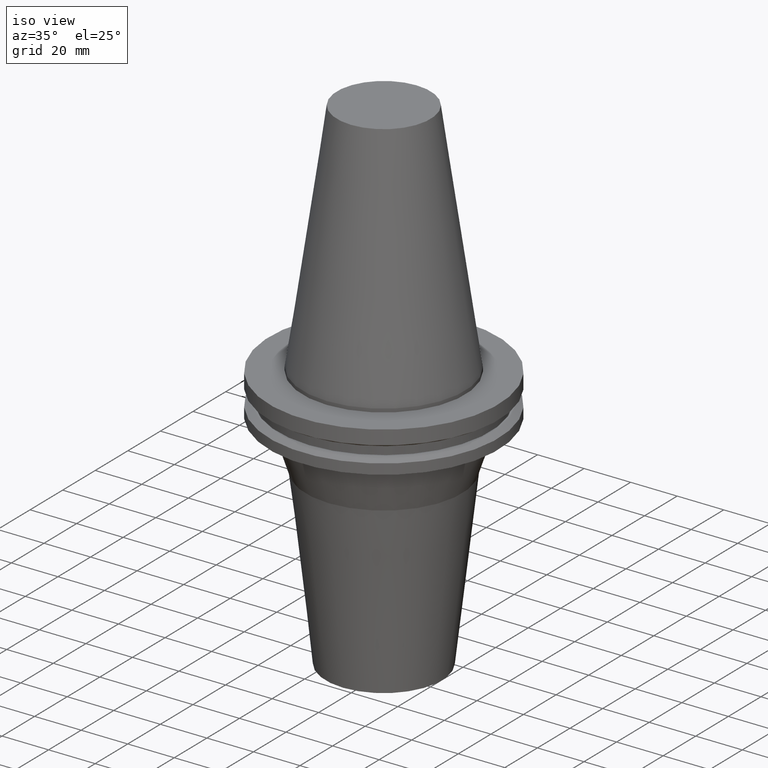
[diagram: clean part render]
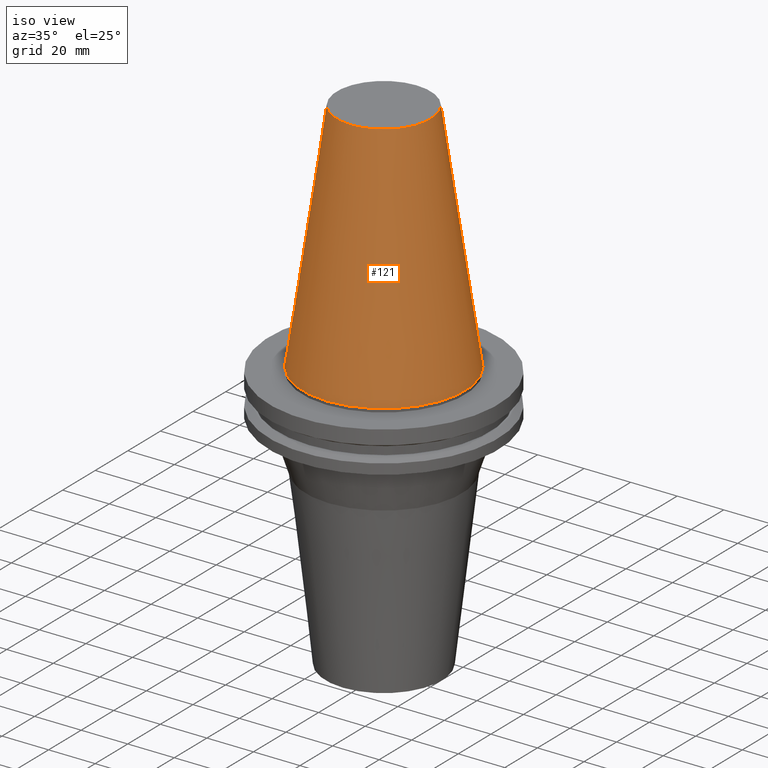
[diagram: tour spotlight — one face highlighted and labeled with its STEP entity id]
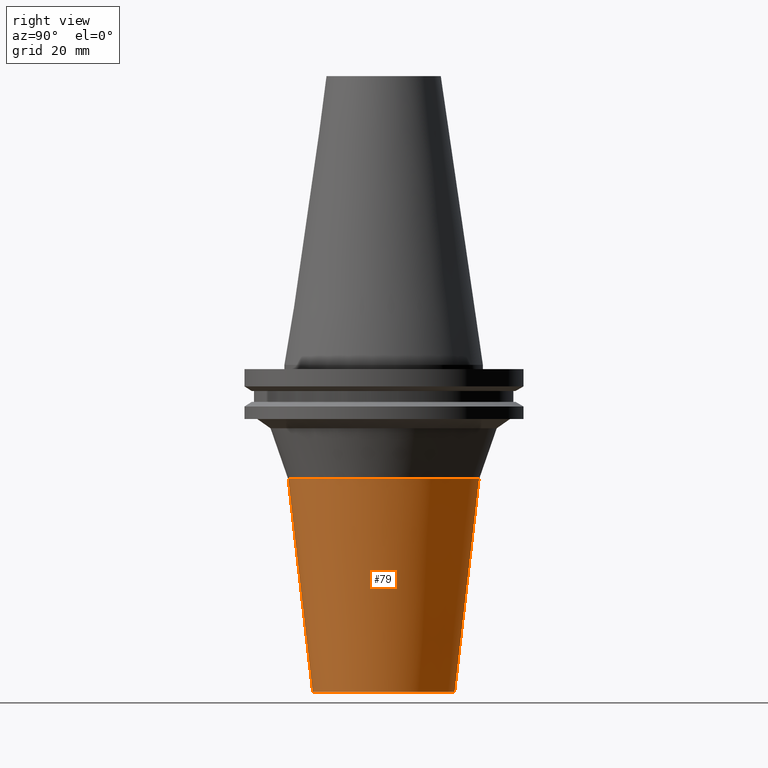
[diagram: tour spotlight — one face highlighted and labeled with its STEP entity id]
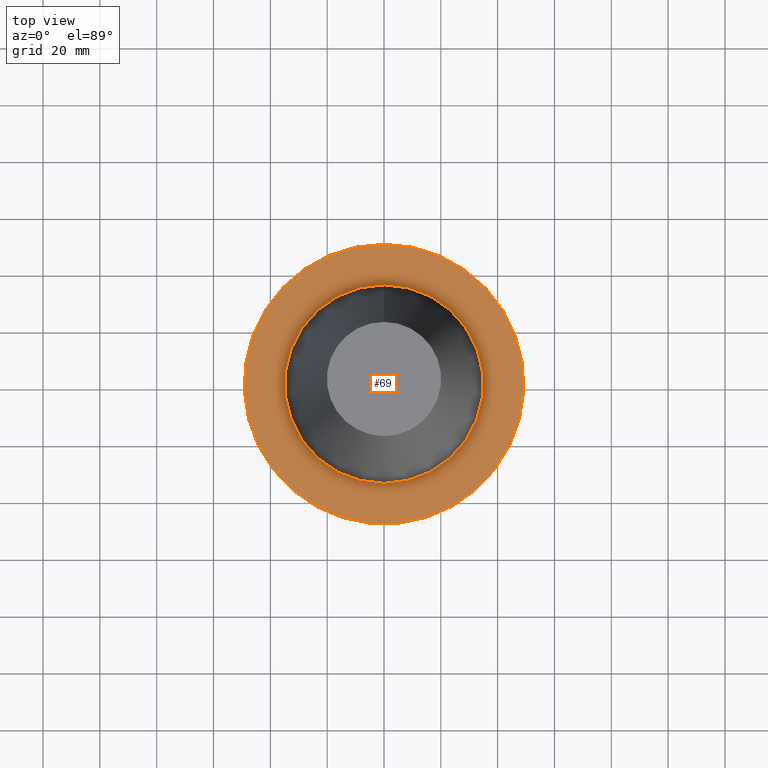
[diagram: tour spotlight — one face highlighted and labeled with its STEP entity id]
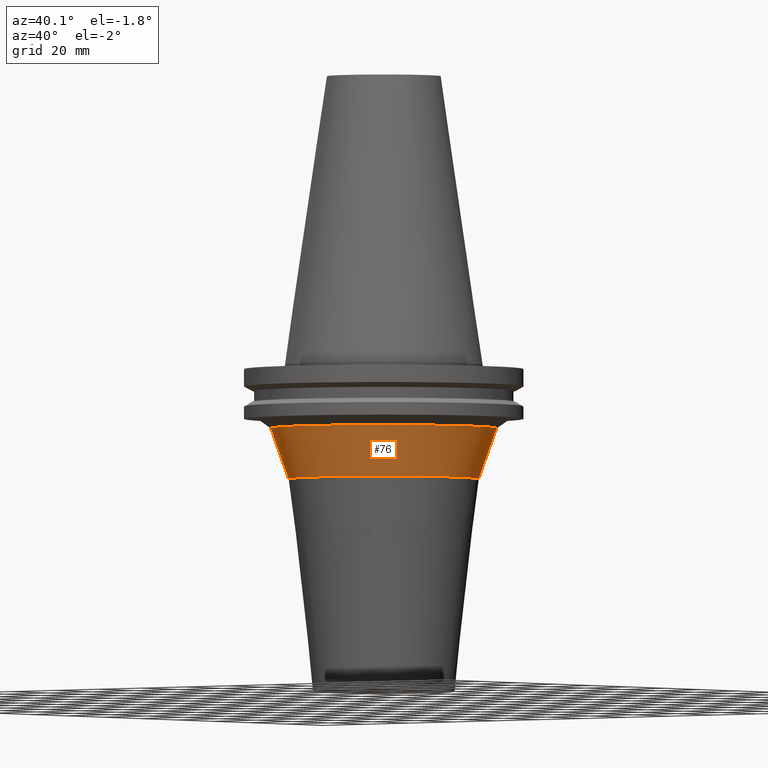
[diagram: tour spotlight — one face highlighted and labeled with its STEP entity id]
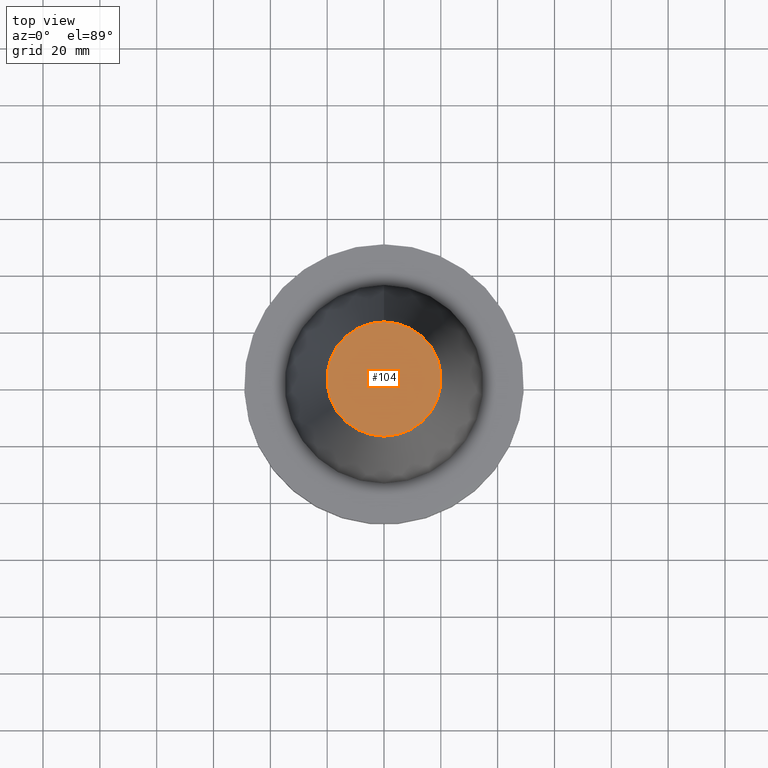
[diagram: tour spotlight — one face highlighted and labeled with its STEP entity id]
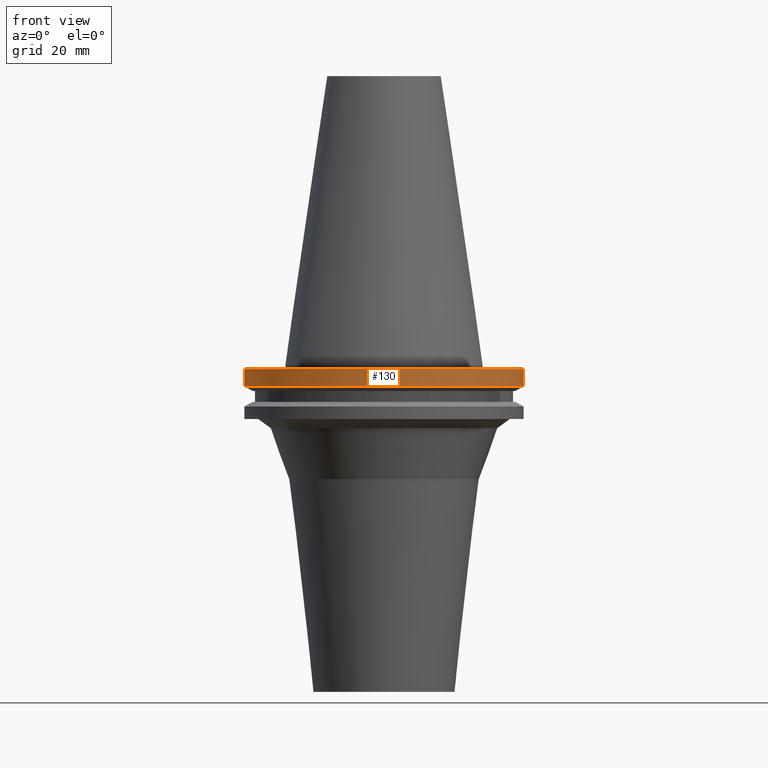
[diagram: tour spotlight — one face highlighted and labeled with its STEP entity id]
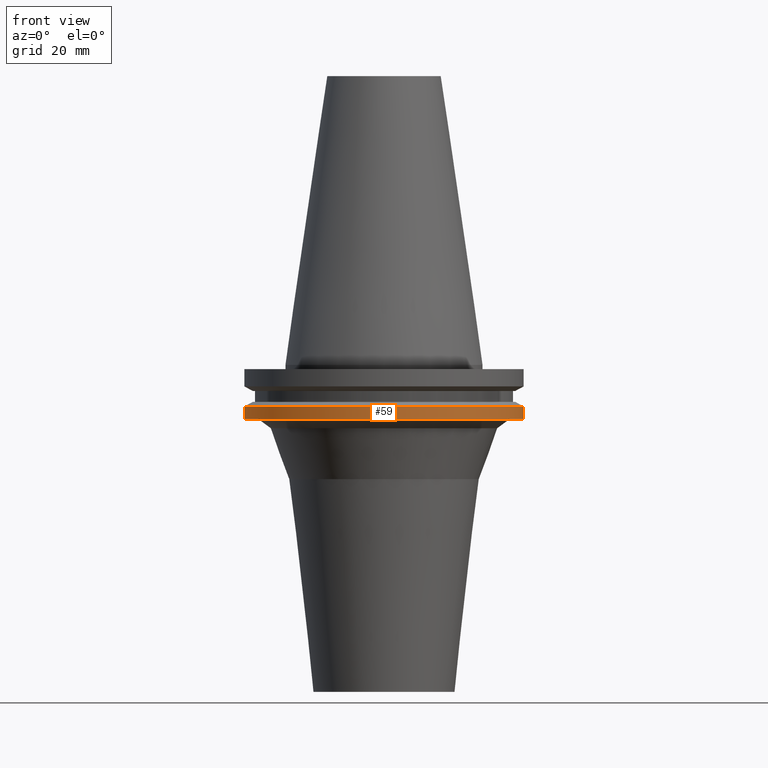
[diagram: tour spotlight — one face highlighted and labeled with its STEP entity id]
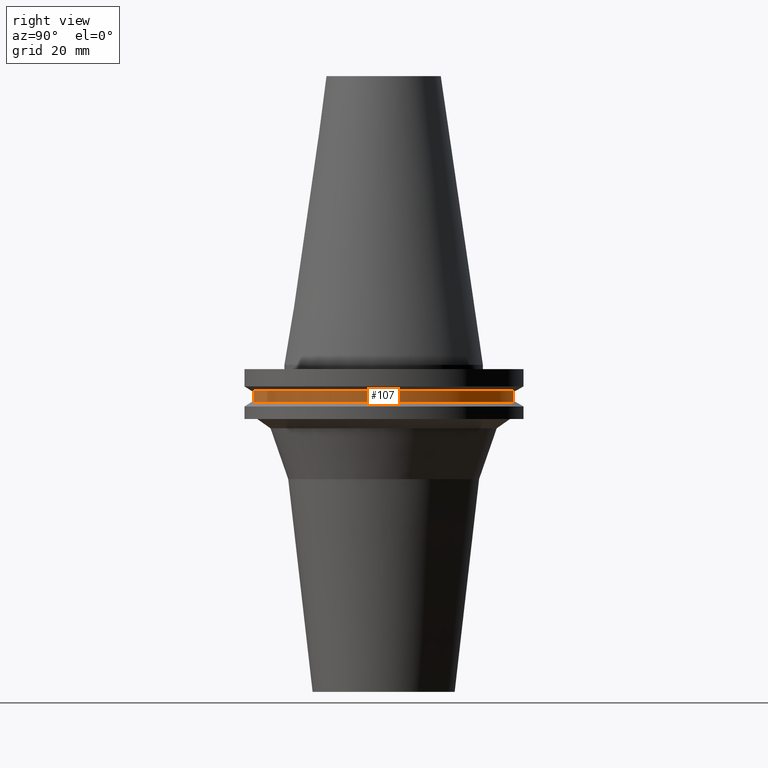
[diagram: tour spotlight — one face highlighted and labeled with its STEP entity id]
A machine part: a face-by-face anatomy tour. The part has 16 B-rep faces; the first image is the clean iso view, then the 8 largest visible faces are spotlighted one at a time (largest first), each with its STEP entity span.

Face 1 — iso view, entity #121. In plain terms, the highlighted conical surface has half-angle 8.297 deg.
Definition (entity closure, byte-faithful):
#121=ADVANCED_FACE('Unnamed[1]',(#253,#254),#255,.T.);
#123=EDGE_CURVE('Unnamed[1]',#257,#257,#258,.T.);
#127=EDGE_CURVE('Unnamed[1]',#263,#263,#264,.T.);
#253=FACE_BOUND('',#410,.T.);
#254=FACE_BOUND('',#411,.T.);
#255=CONICAL_SURFACE('',#412,27.5166666648608,0.144812498273746);
#257=VERTEX_POINT('',#415);
#258=CIRCLE('',#416,20.1083333297217);
#263=VERTEX_POINT('',#423);
#264=CIRCLE('',#424,34.925);
#410=EDGE_LOOP('',(#553));
#411=EDGE_LOOP('',(#554));
#412=AXIS2_PLACEMENT_3D('',#555,#556,#557);
#415=CARTESIAN_POINT('',(-6.22120573966855E-015,20.1083333297217,101.6));
#416=AXIS2_PLACEMENT_3D('',#558,#559,#560);
#423=CARTESIAN_POINT('',(-4.30483861169435E-031,34.925,4.27707894602213E-015));
#424=AXIS2_PLACEMENT_3D('',#564,#565,#566);
#553=ORIENTED_EDGE('',*,*,#127,.F.);
#554=ORIENTED_EDGE('',*,*,#123,.T.);
#555=CARTESIAN_POINT('',(-3.11060286983428E-015,-2.01658754122318E-015,50.8));
#556=DIRECTION('',(6.12323399573677E-017,-1.22619910848867E-016,-1.0));
#557=DIRECTION('',(2.68115133587094E-033,1.0,-1.22619910848867E-016));
#558=CARTESIAN_POINT('',(-6.22120573966855E-015,4.21250392989929E-015,101.6));
#559=DIRECTION('',(6.12323399573677E-017,-1.22619910848867E-016,-1.0));
#560=DIRECTION('',(2.68115133587094E-033,1.0,-1.22619910848867E-016));
#564=CARTESIAN_POINT('',(-8.7016388700601E-031,-8.24567901234564E-015,1.4210854715202E-014));
#565=DIRECTION('',(6.12323399573676E-017,-1.22619910848867E-016,-1.0));
#566=DIRECTION('',(2.68115133587094E-033,1.0,-1.22619910848867E-016));

Face 2 — right view, entity #79. In plain terms, the highlighted conical surface has half-angle 6.541 deg.
Definition (entity closure, byte-faithful):
#71=EDGE_CURVE('Unnamed[1]',#176,#176,#177,.T.);
#79=ADVANCED_FACE('Unnamed[1]',(#188,#189),#190,.T.);
#88=EDGE_CURVE('Unnamed[1]',#201,#201,#202,.T.);
#176=VERTEX_POINT('',#315);
#177=CIRCLE('',#316,24.9999999999999);
#188=FACE_BOUND('',#330,.T.);
#189=FACE_BOUND('',#331,.T.);
#190=CONICAL_SURFACE('',#332,29.2930885876382,0.114170566702656);
#201=VERTEX_POINT('',#346);
#202=CIRCLE('',#347,33.5861771752765);
#315=CARTESIAN_POINT('',(7.04784232909304E-015,24.9999999999999,-115.1));
#316=AXIS2_PLACEMENT_3D('',#468,#469,#470);
#330=EDGE_LOOP('',(#481));
#331=EDGE_LOOP('',(#482));
#332=AXIS2_PLACEMENT_3D('',#483,#484,#485);
#346=CARTESIAN_POINT('',(2.46290095264445E-015,33.5861771752764,-40.2222249608494));
#347=AXIS2_PLACEMENT_3D('',#493,#494,#495);
#468=CARTESIAN_POINT('',(7.04784232909304E-015,-2.23592307510503E-014,-115.1));
#469=DIRECTION('',(6.12323399573676E-017,-1.22619910848867E-016,-1.0));
#470=DIRECTION('',(2.68115133587094E-033,1.0,-1.22619910848867E-016));
#481=ORIENTED_EDGE('',*,*,#71,.F.);
#482=ORIENTED_EDGE('',*,*,#88,.T.);
#483=CARTESIAN_POINT('',(4.75537164086874E-015,-1.77684777011192E-014,-77.6611124804248));
#484=DIRECTION('',(-6.12323399573677E-017,1.22619910848868E-016,1.0));
#485=DIRECTION('',(2.68115133587095E-033,1.0,-1.22619910848868E-016));
#493=CARTESIAN_POINT('',(2.46290095264445E-015,-1.31777246511881E-014,-40.2222249608494));
#494=DIRECTION('',(6.12323399573677E-017,-1.22619910848867E-016,-1.0));
#495=DIRECTION('',(2.68115133587095E-033,1.0,-1.22619910848867E-016));

Face 3 — top view, entity #69. In plain terms, the highlighted planar face has unit normal (-0, -0, 1).
Definition (entity closure, byte-faithful):
#56=EDGE_CURVE('Unnamed[1]',#153,#153,#154,.T.);
#69=ADVANCED_FACE('Unnamed[1]',(#172,#173),#174,.T.);
#125=EDGE_CURVE('Unnamed[1]',#260,#260,#261,.T.);
#153=VERTEX_POINT('',#286);
#154=CIRCLE('',#287,34.925);
#172=FACE_OUTER_BOUND('',#310,.T.);
#173=FACE_BOUND('',#311,.T.);
#174=PLANE('',#312);
#260=VERTEX_POINT('',#419);
#261=CIRCLE('',#420,49.2125);
#286=CARTESIAN_POINT('',(9.18485099360511E-017,34.925,-1.5));
#287=AXIS2_PLACEMENT_3D('',#442,#443,#444);
#310=EDGE_LOOP('',(#463));
#311=EDGE_LOOP('',(#464));
#312=AXIS2_PLACEMENT_3D('',#465,#466,#467);
#419=CARTESIAN_POINT('',(9.18485099360509E-017,49.2125,-1.49999999999999));
#420=AXIS2_PLACEMENT_3D('',#561,#562,#563);
#442=CARTESIAN_POINT('',(9.18485099360506E-017,-8.42960887861895E-015,-1.49999999999999));
#443=DIRECTION('',(6.12323399573676E-017,-1.22619910848867E-016,-1.0));
#444=DIRECTION('',(2.68115133587094E-033,1.0,-1.22619910848867E-016));
#463=ORIENTED_EDGE('',*,*,#125,.F.);
#464=ORIENTED_EDGE('',*,*,#56,.T.);
#465=CARTESIAN_POINT('',(9.1848509936051E-017,42.06875,-1.49999999999999));
#466=DIRECTION('',(-6.12323399573677E-017,-1.22464679914735E-016,1.0));
#467=DIRECTION('',(1.23259516440783E-032,-1.0,-1.22464679914735E-016));
#561=CARTESIAN_POINT('',(9.18485099360506E-017,-8.42960887861895E-015,-1.49999999999999));
#562=DIRECTION('',(6.12323399573677E-017,-1.22619910848867E-016,-1.0));
#563=DIRECTION('',(2.68115133587094E-033,1.0,-1.22619910848867E-016));

Face 4 — auxiliary view, entity #76. In plain terms, the highlighted conical surface has half-angle 19.169 deg.
Definition (entity closure, byte-faithful):
#76=ADVANCED_FACE('Unnamed[1]',(#183,#184),#185,.T.);
#88=EDGE_CURVE('Unnamed[1]',#201,#201,#202,.T.);
#96=EDGE_CURVE('Unnamed[1]',#214,#214,#215,.T.);
#183=FACE_BOUND('',#324,.T.);
#184=FACE_BOUND('',#325,.T.);
#185=CONICAL_SURFACE('',#326,36.6943758811975,0.334560133222812);
#201=VERTEX_POINT('',#346);
#202=CIRCLE('',#347,33.5861771752765);
#214=VERTEX_POINT('',#362);
#215=CIRCLE('',#363,39.8025745871185);
#324=EDGE_LOOP('',(#475));
#325=EDGE_LOOP('',(#476));
#326=AXIS2_PLACEMENT_3D('',#477,#478,#479);
#346=CARTESIAN_POINT('',(2.46290095264445E-015,33.5861771752764,-40.2222249608494));
#347=AXIS2_PLACEMENT_3D('',#493,#494,#495);
#362=CARTESIAN_POINT('',(1.36792430753279E-015,39.8025745871185,-22.339899283372));
#363=AXIS2_PLACEMENT_3D('',#508,#509,#510);
#475=ORIENTED_EDGE('',*,*,#88,.F.);
#476=ORIENTED_EDGE('',*,*,#96,.T.);
#477=CARTESIAN_POINT('',(1.91541263008862E-015,-1.20813600610167E-014,-31.2810621221107));
#478=DIRECTION('',(-6.12323399573677E-017,1.22619910848867E-016,1.0));
#479=DIRECTION('',(2.68115133587094E-033,1.0,-1.22619910848867E-016));
#493=CARTESIAN_POINT('',(2.46290095264445E-015,-1.31777246511881E-014,-40.2222249608494));
#494=DIRECTION('',(6.12323399573677E-017,-1.22619910848867E-016,-1.0));
#495=DIRECTION('',(2.68115133587095E-033,1.0,-1.22619910848867E-016));
#508=CARTESIAN_POINT('',(1.36792430753279E-015,-1.09849954708454E-014,-22.339899283372));
#509=DIRECTION('',(6.12323399573677E-017,-1.22619910848867E-016,-1.0));
#510=DIRECTION('',(2.68115133587095E-033,1.0,-1.22619910848867E-016));

Face 5 — top view, entity #104. In plain terms, the highlighted planar face has unit normal (-0, -0, 1).
Definition (entity closure, byte-faithful):
#104=ADVANCED_FACE('Unnamed[1]',(#226),#227,.T.);
#123=EDGE_CURVE('Unnamed[1]',#257,#257,#258,.T.);
#226=FACE_OUTER_BOUND('',#377,.T.);
#227=PLANE('',#378);
#257=VERTEX_POINT('',#415);
#258=CIRCLE('',#416,20.1083333297217);
#377=EDGE_LOOP('',(#521));
#378=AXIS2_PLACEMENT_3D('',#522,#523,#524);
#415=CARTESIAN_POINT('',(-6.22120573966855E-015,20.1083333297217,101.6));
#416=AXIS2_PLACEMENT_3D('',#558,#559,#560);
#521=ORIENTED_EDGE('',*,*,#123,.F.);
#522=CARTESIAN_POINT('',(-6.22120573966855E-015,10.0541666648608,101.6));
#523=DIRECTION('',(-6.12323399573677E-017,-1.22464679914735E-016,1.0));
#524=DIRECTION('',(1.23259516440783E-032,-1.0,-1.22464679914735E-016));
#558=CARTESIAN_POINT('',(-6.22120573966855E-015,4.21250392989929E-015,101.6));
#559=DIRECTION('',(6.12323399573677E-017,-1.22619910848867E-016,-1.0));
#560=DIRECTION('',(2.68115133587094E-033,1.0,-1.22619910848867E-016));

Face 6 — front view, entity #130. In plain terms, the highlighted cylindrical surface (bore or boss wall) has radius 49.2125 mm, axis along (0, -0, -1).
Definition (entity closure, byte-faithful):
#81=EDGE_CURVE('Unnamed[1]',#192,#192,#193,.T.);
#125=EDGE_CURVE('Unnamed[1]',#260,#260,#261,.T.);
#130=ADVANCED_FACE('Unnamed[1]',(#267,#268),#269,.T.);
#192=VERTEX_POINT('',#335);
#193=CIRCLE('',#336,49.2125);
#260=VERTEX_POINT('',#419);
#261=CIRCLE('',#420,49.2125);
#267=FACE_BOUND('',#428,.T.);
#268=FACE_BOUND('',#429,.T.);
#269=CYLINDRICAL_SURFACE('',#430,49.2125);
#335=CARTESIAN_POINT('',(4.64988177918915E-016,49.2125,-7.59383323));
#336=AXIS2_PLACEMENT_3D('',#486,#487,#488);
#419=CARTESIAN_POINT('',(9.18485099360509E-017,49.2125,-1.49999999999999));
#420=AXIS2_PLACEMENT_3D('',#561,#562,#563);
#428=EDGE_LOOP('',(#568));
#429=EDGE_LOOP('',(#569));
#430=AXIS2_PLACEMENT_3D('',#570,#571,#572);
#486=CARTESIAN_POINT('',(4.64988177918915E-016,-9.17683416600941E-015,-7.59383322999999));
#487=DIRECTION('',(6.12323399573677E-017,-1.22619910848867E-016,-1.0));
#488=DIRECTION('',(2.68115133587094E-033,1.0,-1.22619910848867E-016));
#561=CARTESIAN_POINT('',(9.18485099360506E-017,-8.42960887861895E-015,-1.49999999999999));
#562=DIRECTION('',(6.12323399573677E-017,-1.22619910848867E-016,-1.0));
#563=DIRECTION('',(2.68115133587094E-033,1.0,-1.22619910848867E-016));
#568=ORIENTED_EDGE('',*,*,#81,.F.);
#569=ORIENTED_EDGE('',*,*,#125,.T.);
#570=CARTESIAN_POINT('',(2.78418343927483E-016,-8.80322152231418E-015,-4.54691661499999));
#571=DIRECTION('',(6.12323399573677E-017,-1.22619910848867E-016,-1.0));
#572=DIRECTION('',(2.68115133587094E-033,1.0,-1.22619910848867E-016));

Face 7 — front view, entity #59. In plain terms, the highlighted cylindrical surface (bore or boss wall) has radius 49.2125 mm, axis along (0, -0, -1).
Definition (entity closure, byte-faithful):
#59=ADVANCED_FACE('Unnamed[1]',(#157,#158),#159,.T.);
#66=EDGE_CURVE('Unnamed[1]',#168,#168,#169,.T.);
#112=EDGE_CURVE('Unnamed[1]',#239,#239,#240,.T.);
#157=FACE_BOUND('',#291,.T.);
#158=FACE_BOUND('',#292,.T.);
#159=CYLINDRICAL_SURFACE('',#293,49.2125);
#168=VERTEX_POINT('',#305);
#169=CIRCLE('',#306,49.2125);
#239=VERTEX_POINT('',#393);
#240=CIRCLE('',#394,49.2125);
#291=EDGE_LOOP('',(#446));
#292=EDGE_LOOP('',(#447));
#293=AXIS2_PLACEMENT_3D('',#448,#449,#450);
#305=CARTESIAN_POINT('',(1.16647607618785E-015,49.2125,-19.05));
#306=AXIS2_PLACEMENT_3D('',#459,#460,#461);
#393=CARTESIAN_POINT('',(8.96819062732941E-016,49.2125,-14.64616677));
#394=AXIS2_PLACEMENT_3D('',#537,#538,#539);
#446=ORIENTED_EDGE('',*,*,#66,.F.);
#447=ORIENTED_EDGE('',*,*,#112,.T.);
#448=CARTESIAN_POINT('',(1.0316475694604E-015,-1.03115894949886E-014,-16.848083385));
#449=DIRECTION('',(6.12323399573676E-017,-1.22619910848867E-016,-1.0));
#450=DIRECTION('',(2.68115133587094E-033,1.0,-1.22619910848867E-016));
#459=CARTESIAN_POINT('',(1.16647607618785E-015,-1.05815883140166E-014,-19.05));
#460=DIRECTION('',(6.12323399573676E-017,-1.22619910848867E-016,-1.0));
#461=DIRECTION('',(2.68115133587094E-033,1.0,-1.22619910848867E-016));
#537=CARTESIAN_POINT('',(8.96819062732941E-016,-1.00415906759607E-014,-14.64616677));
#538=DIRECTION('',(6.12323399573676E-017,-1.22619910848867E-016,-1.0));
#539=DIRECTION('',(2.68115133587094E-033,1.0,-1.22619910848867E-016));

Face 8 — right view, entity #107. In plain terms, the highlighted cylindrical surface (bore or boss wall) has radius 45.645 mm, axis along (0, -0, -1).
Definition (entity closure, byte-faithful):
#73=EDGE_CURVE('Unnamed[1]',#179,#179,#180,.T.);
#98=EDGE_CURVE('Unnamed[1]',#217,#217,#218,.T.);
#107=ADVANCED_FACE('Unnamed[1]',(#230,#231),#232,.T.);
#179=VERTEX_POINT('',#319);
#180=CIRCLE('',#320,45.645);
#217=VERTEX_POINT('',#366);
#218=CIRCLE('',#367,45.645);
#230=FACE_BOUND('',#382,.T.);
#231=FACE_BOUND('',#383,.T.);
#232=CYLINDRICAL_SURFACE('',#384,45.645);
#319=CARTESIAN_POINT('',(5.63337527607782E-016,45.645,-9.2));
#320=AXIS2_PLACEMENT_3D('',#471,#472,#473);
#366=CARTESIAN_POINT('',(7.98469713044073E-016,45.645,-13.04));
#367=AXIS2_PLACEMENT_3D('',#511,#512,#513);
#382=EDGE_LOOP('',(#526));
#383=EDGE_LOOP('',(#527));
#384=AXIS2_PLACEMENT_3D('',#528,#529,#530);
#471=CARTESIAN_POINT('',(5.63337527607782E-016,-9.37378219215522E-015,-9.19999999999999));
#472=DIRECTION('',(6.12323399573677E-017,-1.22619910848867E-016,-1.0));
#473=DIRECTION('',(2.68115133587095E-033,1.0,-1.22619910848867E-016));
#511=CARTESIAN_POINT('',(7.98469713044073E-016,-9.84464264981487E-015,-13.04));
#512=DIRECTION('',(6.12323399573677E-017,-1.22619910848867E-016,-1.0));
#513=DIRECTION('',(2.68115133587094E-033,1.0,-1.22619910848867E-016));
#526=ORIENTED_EDGE('',*,*,#98,.F.);
#527=ORIENTED_EDGE('',*,*,#73,.T.);
#528=CARTESIAN_POINT('',(6.80903620325928E-016,-9.60921242098505E-015,-11.12));
#529=DIRECTION('',(6.12323399573677E-017,-1.22619910848867E-016,-1.0));
#530=DIRECTION('',(2.68115133587094E-033,1.0,-1.22619910848867E-016));